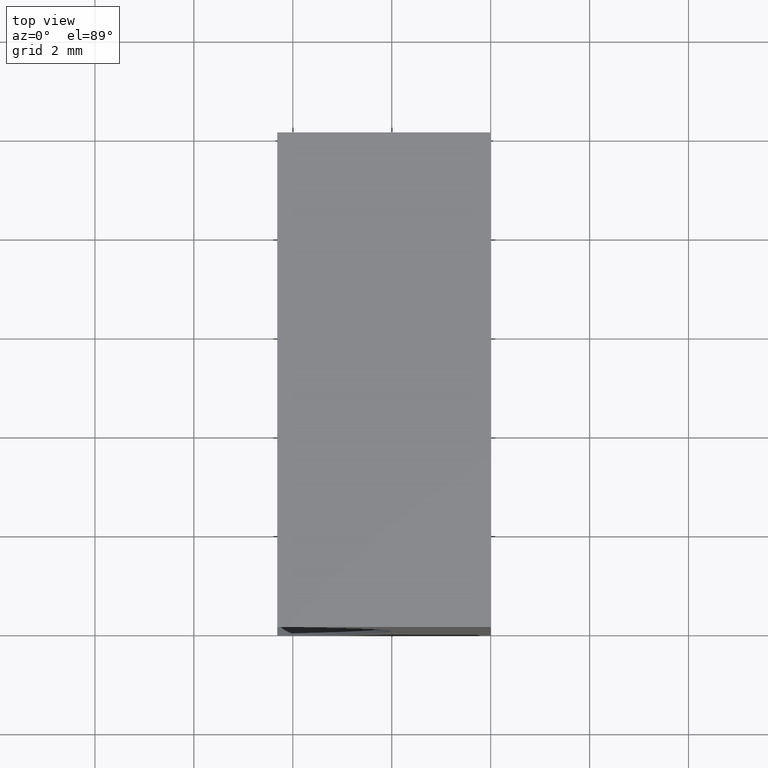
[diagram: clean part render]
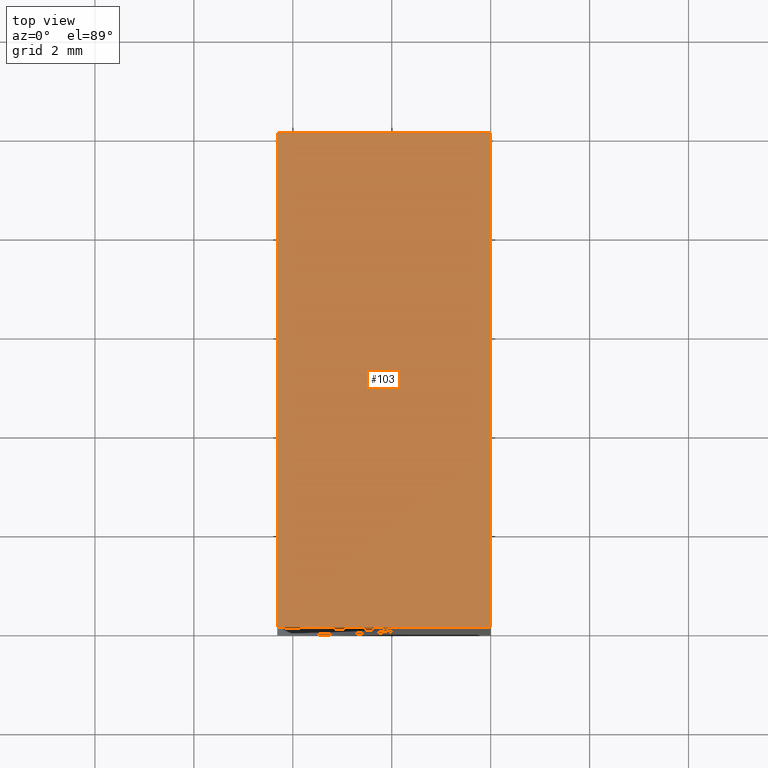
[diagram: same view with one face highlighted and labeled with its STEP entity id]
A machine part, top view. The second image highlights one B-rep face of the part: STEP entity #103.
In plain terms, the highlighted planar face has unit normal (-0, 0, -1).
Its self-contained STEP definition (entity closure, byte-faithful):
#10 = CARTESIAN_POINT ( 'NONE',  ( -4.313401361089090900, 10.00000000000000000, 10.00000000000000200 ) ) ;
#16 = FACE_OUTER_BOUND ( 'NONE', #22, .T. ) ;
#22 = EDGE_LOOP ( 'NONE', ( #133, #37, #106, #52 ) ) ;
#26 = AXIS2_PLACEMENT_3D ( 'NONE', #193, #135, #139 ) ;
#35 = EDGE_CURVE ( 'NONE', #138, #41, #87, .T. ) ;
#37 = ORIENTED_EDGE ( 'NONE', *, *, #35, .F. ) ;
#41 = VERTEX_POINT ( 'NONE', #48 ) ;
#42 = DIRECTION ( 'NONE',  ( 1.000000000000000000, -0.0000000000000000000, -4.021706608676931700E-016 ) ) ;
#43 = DIRECTION ( 'NONE',  ( -0.0000000000000000000, -1.000000000000000000, -0.0000000000000000000 ) ) ;
#47 = CARTESIAN_POINT ( 'NONE',  ( 6.123233995736766300E-016, 10.00000000000000000, 10.00000000000000000 ) ) ;
#48 = CARTESIAN_POINT ( 'NONE',  ( 6.123233995736766300E-016, 0.0000000000000000000, 10.00000000000000000 ) ) ;
#52 = ORIENTED_EDGE ( 'NONE', *, *, #190, .T. ) ;
#66 = VERTEX_POINT ( 'NONE', #72 ) ;
#71 = EDGE_CURVE ( 'NONE', #66, #138, #137, .T. ) ;
#72 = CARTESIAN_POINT ( 'NONE',  ( -4.313401361089090900, 10.00000000000000000, 10.00000000000000200 ) ) ;
#87 = LINE ( 'NONE', #136, #141 ) ;
#103 = ADVANCED_FACE ( 'NONE', ( #16 ), #196, .F. ) ;
#106 = ORIENTED_EDGE ( 'NONE', *, *, #71, .F. ) ;
#107 = VECTOR ( 'NONE', #197, 1000.000000000000000 ) ;
#132 = LINE ( 'NONE', #161, #107 ) ;
#133 = ORIENTED_EDGE ( 'NONE', *, *, #192, .T. ) ;
#135 = DIRECTION ( 'NONE',  ( -4.021706608676931700E-016, 0.0000000000000000000, -1.000000000000000000 ) ) ;
#136 = CARTESIAN_POINT ( 'NONE',  ( 6.123233995736766300E-016, 10.00000000000000000, 10.00000000000000000 ) ) ;
#137 = LINE ( 'NONE', #47, #168 ) ;
#138 = VERTEX_POINT ( 'NONE', #156 ) ;
#139 = DIRECTION ( 'NONE',  ( -1.000000000000000000, 0.0000000000000000000, 4.021706608676931700E-016 ) ) ;
#141 = VECTOR ( 'NONE', #144, 1000.000000000000000 ) ;
#142 = VECTOR ( 'NONE', #43, 1000.000000000000000 ) ;
#144 = DIRECTION ( 'NONE',  ( -0.0000000000000000000, -1.000000000000000000, -0.0000000000000000000 ) ) ;
#156 = CARTESIAN_POINT ( 'NONE',  ( 6.123233995736766300E-016, 10.00000000000000000, 10.00000000000000000 ) ) ;
#159 = VERTEX_POINT ( 'NONE', #162 ) ;
#161 = CARTESIAN_POINT ( 'NONE',  ( 6.123233995736766300E-016, 0.0000000000000000000, 10.00000000000000000 ) ) ;
#162 = CARTESIAN_POINT ( 'NONE',  ( -4.313401361089090900, 0.0000000000000000000, 10.00000000000000200 ) ) ;
#168 = VECTOR ( 'NONE', #42, 1000.000000000000000 ) ;
#179 = LINE ( 'NONE', #10, #142 ) ;
#190 = EDGE_CURVE ( 'NONE', #66, #159, #179, .T. ) ;
#192 = EDGE_CURVE ( 'NONE', #159, #41, #132, .T. ) ;
#193 = CARTESIAN_POINT ( 'NONE',  ( 6.123233995736766300E-016, 10.00000000000000000, 10.00000000000000000 ) ) ;
#196 = PLANE ( 'NONE',  #26 ) ;
#197 = DIRECTION ( 'NONE',  ( 1.000000000000000000, -0.0000000000000000000, -4.021706608676931700E-016 ) ) ;